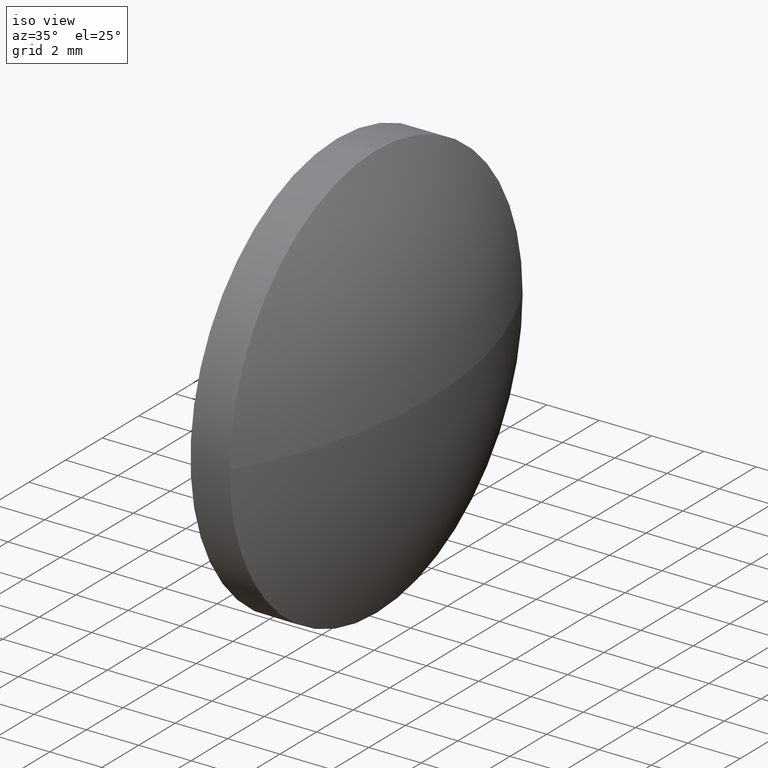
[diagram: clean part render]
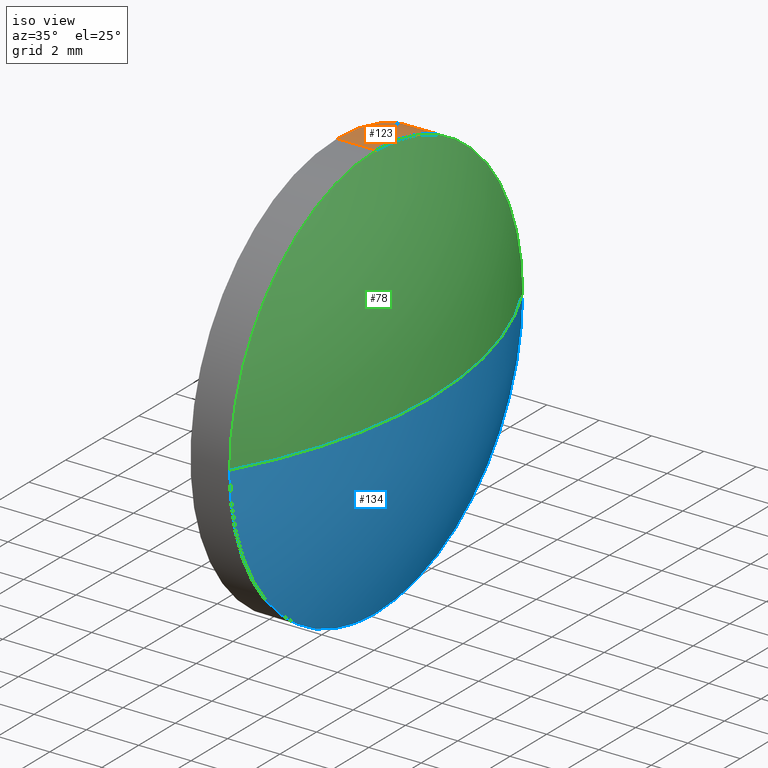
[diagram: same view with three faces highlighted in distinct colors, each labeled with its STEP entity id]
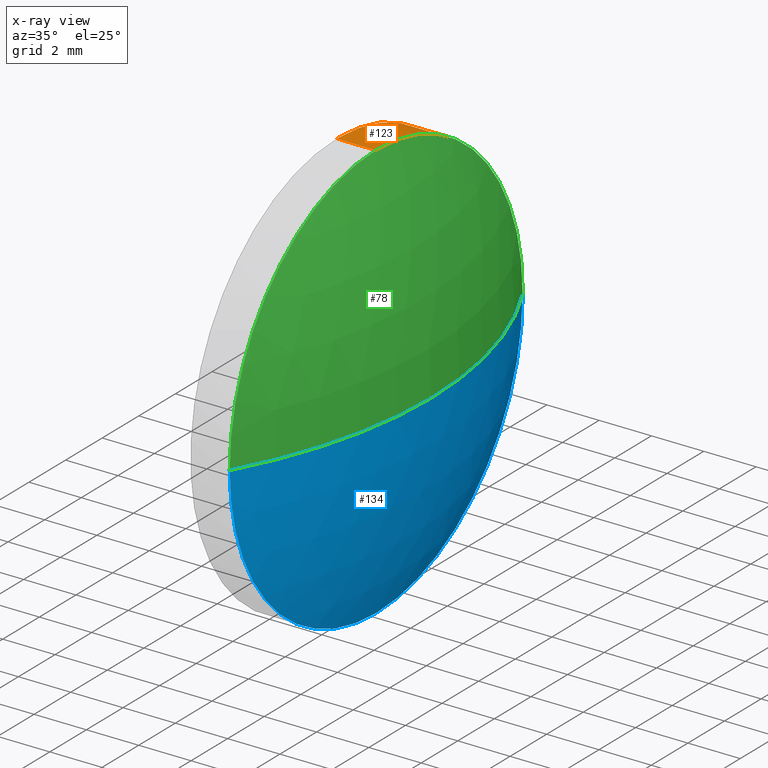
[diagram: x-ray of the same camera — body ghosted, the three highlighted faces saturated]
A machine part, iso view with three faces highlighted in distinct colors.
The next image is the same camera in x-ray (body ghosted, the three faces saturated) — at least one of them is partly hidden behind the body in this view.
Their STEP definitions:

[orange] entity #123 — the highlighted cylindrical surface (partial cylindrical patch) has radius 8 mm, axis along (-1, -0, -0).
#2 = CIRCLE ( 'NONE', #157, 7.999999999999992900 ) ;
#7 = VERTEX_POINT ( 'NONE', #69 ) ;
#11 = EDGE_CURVE ( 'NONE', #56, #20, #2, .T. ) ;
#18 = VECTOR ( 'NONE', #87, 1000.000000000000000 ) ;
#20 = VERTEX_POINT ( 'NONE', #57 ) ;
#26 = DIRECTION ( 'NONE',  ( -1.000000000000000000, -0.0000000000000000000, -0.0000000000000000000 ) ) ;
#28 = EDGE_CURVE ( 'NONE', #79, #56, #160, .T. ) ;
#32 = FACE_OUTER_BOUND ( 'NONE', #113, .T. ) ;
#33 = AXIS2_PLACEMENT_3D ( 'NONE', #108, #154, #73 ) ;
#34 = ORIENTED_EDGE ( 'NONE', *, *, #28, .T. ) ;
#39 = ORIENTED_EDGE ( 'NONE', *, *, #43, .F. ) ;
#42 = VERTEX_POINT ( 'NONE', #151 ) ;
#43 = EDGE_CURVE ( 'NONE', #79, #7, #99, .T. ) ;
#55 = LINE ( 'NONE', #109, #76 ) ;
#56 = VERTEX_POINT ( 'NONE', #145 ) ;
#57 = CARTESIAN_POINT ( 'NONE',  ( 486.9010122336356400, -76.31670347196424600, -7.999999999999992900 ) ) ;
#58 = CARTESIAN_POINT ( 'NONE',  ( 486.9010122336356400, -76.31670347196424600, 0.0000000000000000000 ) ) ;
#63 = AXIS2_PLACEMENT_3D ( 'NONE', #58, #72, #163 ) ;
#69 = CARTESIAN_POINT ( 'NONE',  ( 485.4010122336356400, -76.31670347196424600, 7.999999999999992900 ) ) ;
#72 = DIRECTION ( 'NONE',  ( -1.000000000000000000, -0.0000000000000000000, -0.0000000000000000000 ) ) ;
#73 = DIRECTION ( 'NONE',  ( 0.0000000000000000000, 0.0000000000000000000, 1.000000000000000000 ) ) ;
#76 = VECTOR ( 'NONE', #130, 1000.000000000000000 ) ;
#79 = VERTEX_POINT ( 'NONE', #92 ) ;
#87 = DIRECTION ( 'NONE',  ( -1.000000000000000000, -0.0000000000000000000, -0.0000000000000000000 ) ) ;
#89 = DIRECTION ( 'NONE',  ( 0.0000000000000000000, 0.0000000000000000000, 1.000000000000000000 ) ) ;
#91 = CARTESIAN_POINT ( 'NONE',  ( 485.4010122336356400, -76.31670347196424600, 0.0000000000000000000 ) ) ;
#92 = CARTESIAN_POINT ( 'NONE',  ( 486.9010122336356400, -76.31670347196424600, 7.999999999999992900 ) ) ;
#93 = AXIS2_PLACEMENT_3D ( 'NONE', #91, #26, #89 ) ;
#99 = LINE ( 'NONE', #126, #18 ) ;
#108 = CARTESIAN_POINT ( 'NONE',  ( 483.7530397606441300, -76.31670347196424600, 0.0000000000000000000 ) ) ;
#109 = CARTESIAN_POINT ( 'NONE',  ( 483.7530397606441300, -76.31670347196424600, -7.999999999999992900 ) ) ;
#110 = CIRCLE ( 'NONE', #93, 7.999999999999992900 ) ;
#113 = EDGE_LOOP ( 'NONE', ( #121, #176, #161, #39, #34 ) ) ;
#121 = ORIENTED_EDGE ( 'NONE', *, *, #11, .T. ) ;
#123 = ADVANCED_FACE ( 'NONE', ( #32 ), #175, .T. ) ;
#126 = CARTESIAN_POINT ( 'NONE',  ( 483.7530397606441300, -76.31670347196424600, 7.999999999999992900 ) ) ;
#130 = DIRECTION ( 'NONE',  ( -1.000000000000000000, -0.0000000000000000000, -0.0000000000000000000 ) ) ;
#143 = EDGE_CURVE ( 'NONE', #20, #42, #55, .T. ) ;
#145 = CARTESIAN_POINT ( 'NONE',  ( 486.9010122336356400, -68.31670347196424600, 0.0000000000000000000 ) ) ;
#149 = DIRECTION ( 'NONE',  ( -1.000000000000000000, -0.0000000000000000000, -0.0000000000000000000 ) ) ;
#151 = CARTESIAN_POINT ( 'NONE',  ( 485.4010122336356400, -76.31670347196424600, -7.999999999999992900 ) ) ;
#154 = DIRECTION ( 'NONE',  ( -1.000000000000000000, -0.0000000000000000000, -0.0000000000000000000 ) ) ;
#157 = AXIS2_PLACEMENT_3D ( 'NONE', #178, #149, #162 ) ;
#160 = CIRCLE ( 'NONE', #63, 7.999999999999992900 ) ;
#161 = ORIENTED_EDGE ( 'NONE', *, *, #177, .F. ) ;
#162 = DIRECTION ( 'NONE',  ( 0.0000000000000000000, 0.0000000000000000000, 1.000000000000000000 ) ) ;
#163 = DIRECTION ( 'NONE',  ( 0.0000000000000000000, 0.0000000000000000000, 1.000000000000000000 ) ) ;
#175 = CYLINDRICAL_SURFACE ( 'NONE', #33, 7.999999999999992900 ) ;
#176 = ORIENTED_EDGE ( 'NONE', *, *, #143, .T. ) ;
#177 = EDGE_CURVE ( 'NONE', #7, #42, #110, .T. ) ;
#178 = CARTESIAN_POINT ( 'NONE',  ( 486.9010122336356400, -76.31670347196424600, 0.0000000000000000000 ) ) ;

[blue] entity #134 — the highlighted spherical surface has radius 16.2881 mm.
#2 = CIRCLE ( 'NONE', #157, 7.999999999999992900 ) ;
#3 = EDGE_CURVE ( 'NONE', #65, #56, #174, .T. ) ;
#8 = DIRECTION ( 'NONE',  ( -0.0000000000000000000, 0.0000000000000000000, 1.000000000000000000 ) ) ;
#10 = AXIS2_PLACEMENT_3D ( 'NONE', #169, #14, #170 ) ;
#11 = EDGE_CURVE ( 'NONE', #56, #20, #2, .T. ) ;
#14 = DIRECTION ( 'NONE',  ( -0.0000000000000000000, 0.0000000000000000000, -1.000000000000000000 ) ) ;
#19 = AXIS2_PLACEMENT_3D ( 'NONE', #45, #8, #182 ) ;
#20 = VERTEX_POINT ( 'NONE', #57 ) ;
#21 = EDGE_CURVE ( 'NONE', #65, #36, #129, .T. ) ;
#23 = CARTESIAN_POINT ( 'NONE',  ( 489.0010122336356100, -76.31670347196427400, 0.0000000000000000000 ) ) ;
#36 = VERTEX_POINT ( 'NONE', #180 ) ;
#40 = SPHERICAL_SURFACE ( 'NONE', #10, 16.28809523809527300 ) ;
#41 = AXIS2_PLACEMENT_3D ( 'NONE', #105, #135, #148 ) ;
#44 = FACE_OUTER_BOUND ( 'NONE', #119, .T. ) ;
#45 = CARTESIAN_POINT ( 'NONE',  ( 472.7129169955403500, -76.31670347196427400, 0.0000000000000000000 ) ) ;
#56 = VERTEX_POINT ( 'NONE', #145 ) ;
#57 = CARTESIAN_POINT ( 'NONE',  ( 486.9010122336356400, -76.31670347196424600, -7.999999999999992900 ) ) ;
#60 = CARTESIAN_POINT ( 'NONE',  ( 486.9010122336356400, -76.31670347196424600, 0.0000000000000000000 ) ) ;
#65 = VERTEX_POINT ( 'NONE', #23 ) ;
#67 = ORIENTED_EDGE ( 'NONE', *, *, #3, .F. ) ;
#71 = DIRECTION ( 'NONE',  ( -1.000000000000000000, -0.0000000000000000000, -0.0000000000000000000 ) ) ;
#105 = CARTESIAN_POINT ( 'NONE',  ( 472.7129169955403500, -76.31670347196427400, 0.0000000000000000000 ) ) ;
#106 = DIRECTION ( 'NONE',  ( 0.0000000000000000000, 0.0000000000000000000, 1.000000000000000000 ) ) ;
#112 = AXIS2_PLACEMENT_3D ( 'NONE', #60, #71, #106 ) ;
#114 = ORIENTED_EDGE ( 'NONE', *, *, #21, .T. ) ;
#119 = EDGE_LOOP ( 'NONE', ( #67, #114, #133, #147 ) ) ;
#129 = CIRCLE ( 'NONE', #41, 16.28809523809527300 ) ;
#133 = ORIENTED_EDGE ( 'NONE', *, *, #165, .F. ) ;
#134 = ADVANCED_FACE ( 'NONE', ( #44 ), #40, .T. ) ;
#135 = DIRECTION ( 'NONE',  ( 0.0000000000000000000, 1.224646799147353200E-016, -1.000000000000000000 ) ) ;
#136 = CIRCLE ( 'NONE', #112, 7.999999999999992900 ) ;
#145 = CARTESIAN_POINT ( 'NONE',  ( 486.9010122336356400, -68.31670347196424600, 0.0000000000000000000 ) ) ;
#147 = ORIENTED_EDGE ( 'NONE', *, *, #11, .F. ) ;
#148 = DIRECTION ( 'NONE',  ( 0.0000000000000000000, 1.000000000000000000, 1.224646799147353200E-016 ) ) ;
#149 = DIRECTION ( 'NONE',  ( -1.000000000000000000, -0.0000000000000000000, -0.0000000000000000000 ) ) ;
#157 = AXIS2_PLACEMENT_3D ( 'NONE', #178, #149, #162 ) ;
#162 = DIRECTION ( 'NONE',  ( 0.0000000000000000000, 0.0000000000000000000, 1.000000000000000000 ) ) ;
#165 = EDGE_CURVE ( 'NONE', #20, #36, #136, .T. ) ;
#169 = CARTESIAN_POINT ( 'NONE',  ( 472.7129169955403500, -76.31670347196427400, 0.0000000000000000000 ) ) ;
#170 = DIRECTION ( 'NONE',  ( 0.0000000000000000000, 1.000000000000000000, 0.0000000000000000000 ) ) ;
#174 = CIRCLE ( 'NONE', #19, 16.28809523809526600 ) ;
#178 = CARTESIAN_POINT ( 'NONE',  ( 486.9010122336356400, -76.31670347196424600, 0.0000000000000000000 ) ) ;
#180 = CARTESIAN_POINT ( 'NONE',  ( 486.9010122336356400, -84.31670347196426000, -9.797174393178809900E-016 ) ) ;
#182 = DIRECTION ( 'NONE',  ( 1.000000000000000000, 0.0000000000000000000, 0.0000000000000000000 ) ) ;

[green] entity #78 — the highlighted spherical surface has radius 16.2881 mm.
#3 = EDGE_CURVE ( 'NONE', #65, #56, #174, .T. ) ;
#8 = DIRECTION ( 'NONE',  ( -0.0000000000000000000, 0.0000000000000000000, 1.000000000000000000 ) ) ;
#13 = DIRECTION ( 'NONE',  ( -1.000000000000000000, -0.0000000000000000000, -0.0000000000000000000 ) ) ;
#15 = CIRCLE ( 'NONE', #97, 7.999999999999992900 ) ;
#19 = AXIS2_PLACEMENT_3D ( 'NONE', #45, #8, #182 ) ;
#21 = EDGE_CURVE ( 'NONE', #65, #36, #129, .T. ) ;
#22 = ORIENTED_EDGE ( 'NONE', *, *, #152, .F. ) ;
#23 = CARTESIAN_POINT ( 'NONE',  ( 489.0010122336356100, -76.31670347196427400, 0.0000000000000000000 ) ) ;
#27 = CARTESIAN_POINT ( 'NONE',  ( 472.7129169955403500, -76.31670347196427400, 0.0000000000000000000 ) ) ;
#28 = EDGE_CURVE ( 'NONE', #79, #56, #160, .T. ) ;
#30 = EDGE_LOOP ( 'NONE', ( #77, #142, #75, #22 ) ) ;
#31 = DIRECTION ( 'NONE',  ( -0.0000000000000000000, 0.0000000000000000000, -1.000000000000000000 ) ) ;
#36 = VERTEX_POINT ( 'NONE', #180 ) ;
#38 = SPHERICAL_SURFACE ( 'NONE', #81, 16.28809523809527300 ) ;
#41 = AXIS2_PLACEMENT_3D ( 'NONE', #105, #135, #148 ) ;
#45 = CARTESIAN_POINT ( 'NONE',  ( 472.7129169955403500, -76.31670347196427400, 0.0000000000000000000 ) ) ;
#56 = VERTEX_POINT ( 'NONE', #145 ) ;
#58 = CARTESIAN_POINT ( 'NONE',  ( 486.9010122336356400, -76.31670347196424600, 0.0000000000000000000 ) ) ;
#61 = CARTESIAN_POINT ( 'NONE',  ( 486.9010122336356400, -76.31670347196424600, 0.0000000000000000000 ) ) ;
#63 = AXIS2_PLACEMENT_3D ( 'NONE', #58, #72, #163 ) ;
#65 = VERTEX_POINT ( 'NONE', #23 ) ;
#70 = FACE_OUTER_BOUND ( 'NONE', #30, .T. ) ;
#72 = DIRECTION ( 'NONE',  ( -1.000000000000000000, -0.0000000000000000000, -0.0000000000000000000 ) ) ;
#75 = ORIENTED_EDGE ( 'NONE', *, *, #28, .F. ) ;
#77 = ORIENTED_EDGE ( 'NONE', *, *, #21, .F. ) ;
#78 = ADVANCED_FACE ( 'NONE', ( #70 ), #38, .T. ) ;
#79 = VERTEX_POINT ( 'NONE', #92 ) ;
#81 = AXIS2_PLACEMENT_3D ( 'NONE', #27, #31, #153 ) ;
#92 = CARTESIAN_POINT ( 'NONE',  ( 486.9010122336356400, -76.31670347196424600, 7.999999999999992900 ) ) ;
#97 = AXIS2_PLACEMENT_3D ( 'NONE', #61, #13, #118 ) ;
#105 = CARTESIAN_POINT ( 'NONE',  ( 472.7129169955403500, -76.31670347196427400, 0.0000000000000000000 ) ) ;
#118 = DIRECTION ( 'NONE',  ( 0.0000000000000000000, 0.0000000000000000000, 1.000000000000000000 ) ) ;
#129 = CIRCLE ( 'NONE', #41, 16.28809523809527300 ) ;
#135 = DIRECTION ( 'NONE',  ( 0.0000000000000000000, 1.224646799147353200E-016, -1.000000000000000000 ) ) ;
#142 = ORIENTED_EDGE ( 'NONE', *, *, #3, .T. ) ;
#145 = CARTESIAN_POINT ( 'NONE',  ( 486.9010122336356400, -68.31670347196424600, 0.0000000000000000000 ) ) ;
#148 = DIRECTION ( 'NONE',  ( 0.0000000000000000000, 1.000000000000000000, 1.224646799147353200E-016 ) ) ;
#152 = EDGE_CURVE ( 'NONE', #36, #79, #15, .T. ) ;
#153 = DIRECTION ( 'NONE',  ( 0.0000000000000000000, 1.000000000000000000, 0.0000000000000000000 ) ) ;
#160 = CIRCLE ( 'NONE', #63, 7.999999999999992900 ) ;
#163 = DIRECTION ( 'NONE',  ( 0.0000000000000000000, 0.0000000000000000000, 1.000000000000000000 ) ) ;
#174 = CIRCLE ( 'NONE', #19, 16.28809523809526600 ) ;
#180 = CARTESIAN_POINT ( 'NONE',  ( 486.9010122336356400, -84.31670347196426000, -9.797174393178809900E-016 ) ) ;
#182 = DIRECTION ( 'NONE',  ( 1.000000000000000000, 0.0000000000000000000, 0.0000000000000000000 ) ) ;